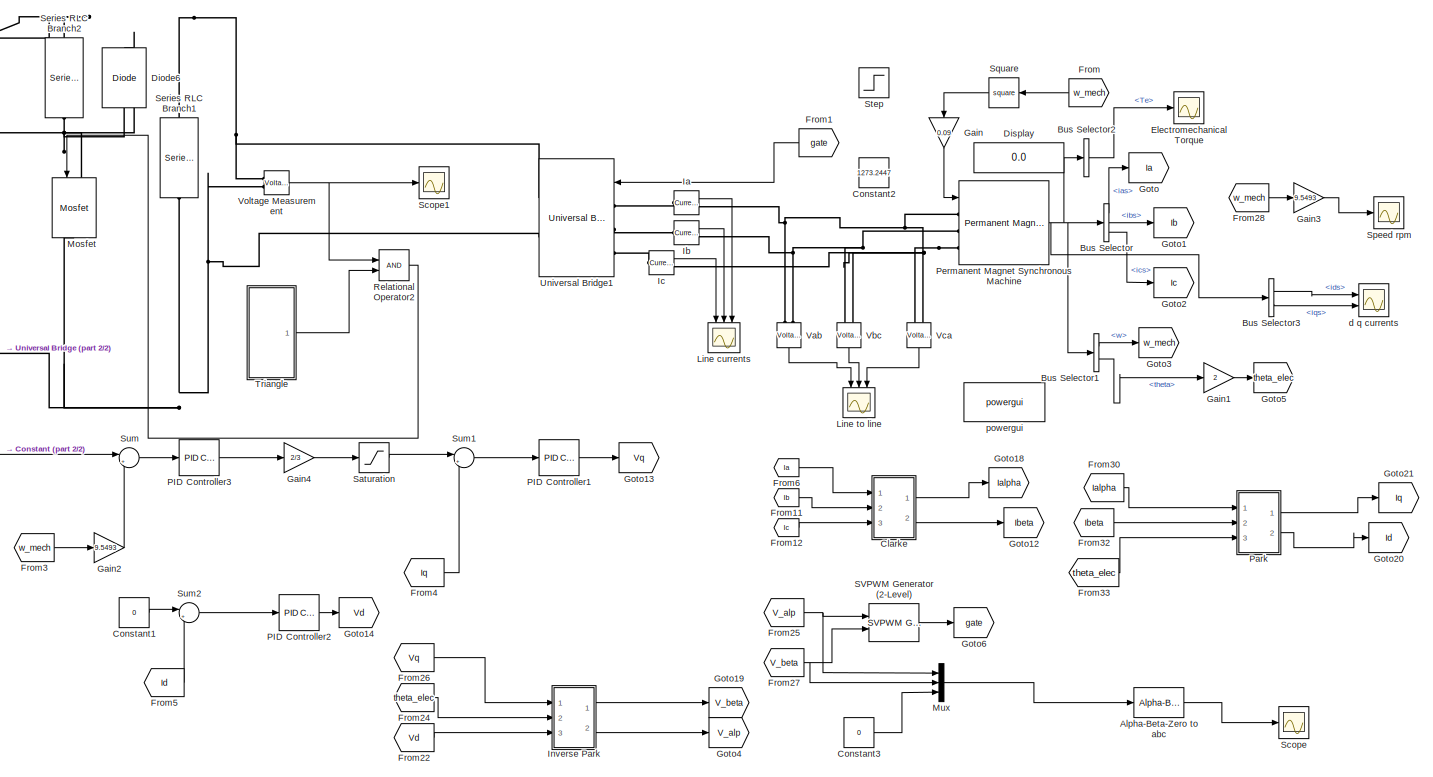
[diagram: root canvas - part 1/2, most of the canvas]
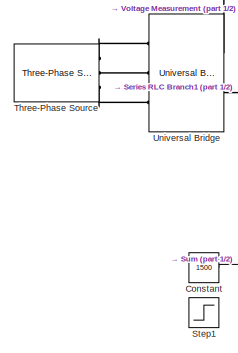
[diagram: root canvas - part 2/2, middle left region]
MODEL slx_61629ac825fa
KIND model
CONFIG AbsTol = auto
CONFIG EnableMultiTasking = off
CONFIG FixedStep = auto
CONFIG MaxStep = auto
CONFIG MinStep = auto
CONFIG RelTol = 1e-3
CONFIG SampleTimeConstraint = Unconstrained
CONFIG Solver = VariableStepDiscrete
CONFIG SolverName = VariableStepDiscrete
CONFIG StartTime = 0.0
CONFIG StopTime = 3
BLOCK [Reference] Alpha-Beta-Zero to abc  REF=powerlib_meascontrol/Transformations/Alpha-Beta-Zero
to abc
  Ports = [1, 1]
  SourceBlock = powerlib_meascontrol/Transformations/Alpha-Beta-Zero\nto abc
  SourceProductBaseCode = PS
  SourceProductName = Simscape Power Systems
  SourceType = Alpha-Beta-Zero to abc Transformation
BLOCK [BusSelector] Bus Selector
  OutputAsBus = off
  OutputSignals = ias,ibs,ics
  Ports = [1, 3]
BLOCK [BusSelector] Bus Selector1
  OutputAsBus = off
  OutputSignals = w,theta
  Ports = [1, 2]
BLOCK [BusSelector] Bus Selector2
  OutputAsBus = off
  OutputSignals = Te
  Ports = [1, 1]
BLOCK [BusSelector] Bus Selector3
  OutputAsBus = off
  OutputSignals = ids,iqs
  Ports = [1, 2]
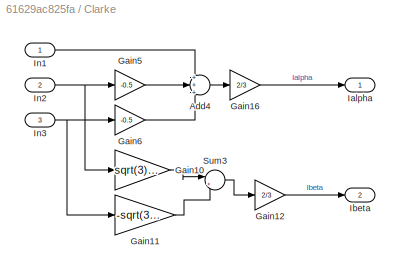
BLOCK [SubSystem] Clarke
  Ports = [3, 2]
  RequestExecContextInheritance = off
BLOCK [Sum] Clarke/Add4
  IconShape = round
  InputSameDT = off
  Inputs = +++
  OutDataTypeStr = Inherit: Inherit via internal rule
  Ports = [3, 1]
  SaturateOnIntegerOverflow = off
BLOCK [Gain] Clarke/Gain10
  Gain = sqrt(3)/2
  OutDataTypeStr = Inherit: Inherit via internal rule
  ParamDataTypeStr = Inherit: Inherit via internal rule
  SaturateOnIntegerOverflow = off
BLOCK [Gain] Clarke/Gain11
  Gain = -sqrt(3)/2
  OutDataTypeStr = Inherit: Inherit via internal rule
  ParamDataTypeStr = Inherit: Inherit via internal rule
  SaturateOnIntegerOverflow = off
BLOCK [Gain] Clarke/Gain12
  Gain = 2/3
  OutDataTypeStr = Inherit: Inherit via internal rule
  ParamDataTypeStr = Inherit: Inherit via internal rule
  SaturateOnIntegerOverflow = off
BLOCK [Gain] Clarke/Gain16
  Gain = 2/3
  OutDataTypeStr = Inherit: Inherit via internal rule
  ParamDataTypeStr = Inherit: Inherit via internal rule
  SaturateOnIntegerOverflow = off
BLOCK [Gain] Clarke/Gain5
  Gain = -0.5
  OutDataTypeStr = Inherit: Inherit via internal rule
  ParamDataTypeStr = Inherit: Inherit via internal rule
  SaturateOnIntegerOverflow = off
BLOCK [Gain] Clarke/Gain6
  Gain = -0.5
  OutDataTypeStr = Inherit: Inherit via internal rule
  ParamDataTypeStr = Inherit: Inherit via internal rule
  SaturateOnIntegerOverflow = off
BLOCK [Outport] Clarke/Ialpha
  IconDisplay = Port number
BLOCK [Outport] Clarke/Ibeta
  IconDisplay = Port number
  Port = 2
BLOCK [Inport] Clarke/In1
  IconDisplay = Port number
BLOCK [Inport] Clarke/In2
  IconDisplay = Port number
  Port = 2
BLOCK [Inport] Clarke/In3
  IconDisplay = Port number
  Port = 3
BLOCK [Sum] Clarke/Sum3
  IconShape = round
  InputSameDT = off
  Inputs = |++
  OutDataTypeStr = Inherit: Inherit via internal rule
  Ports = [2, 1]
  SaturateOnIntegerOverflow = off
BLOCK [Constant] Constant
  Value = 1500
BLOCK [Constant] Constant1
  Value = 0
BLOCK [Constant] Constant2
  Value = 1273.2447
BLOCK [Constant] Constant3
  Value = 0
BLOCK [Reference] Diode6  REF=powerlib/Power
Electronics/Diode
  Ports = [0, 0, 0, 0, 0, 1, 1]
  SourceBlock = powerlib/Power\nElectronics/Diode
  SourceProductBaseCode = PS
  SourceProductName = Simscape Power Systems
  SourceType = Diode
BLOCK [Display] Display
  Decimation = 1
  Ports = [1]
BLOCK [Scope] Electromechanical Torque
  Floating = off
  NumInputPorts = 1
  Ports = [1]
  ScopeSpecificationString = Simulink.scopes.TimeScopeBlockCfg('CurrentConfiguration', extmgr.ConfigurationSet(extmgr.Configuration('Core','General UI',true,'FigureColor',[1 1 1]),extmgr.Configuration('Core','Source UI',true),extmgr.Configuration('Sources','WiredSimulink',true,'DataLoggingVariableName','ScopeData2'),extmgr.Configuration('Visuals','Time Domain',true,'SerializedDisplays',{struct('MinYLimReal','-4802.388','MaxYL...<+1638ch>
BLOCK [From] From
  GotoTag = w_mech
BLOCK [From] From1
  GotoTag = gate
BLOCK [From] From11
  GotoTag = Ib
BLOCK [From] From12
  GotoTag = Ic
BLOCK [From] From22
  GotoTag = Vd
BLOCK [From] From24
  GotoTag = theta_elec
BLOCK [From] From25
  GotoTag = V_alp
BLOCK [From] From26
  GotoTag = Vq
BLOCK [From] From27
  GotoTag = V_beta
BLOCK [From] From28
  GotoTag = w_mech
BLOCK [From] From3
  GotoTag = w_mech
BLOCK [From] From30
  GotoTag = Ialpha
BLOCK [From] From32
  GotoTag = Ibeta
BLOCK [From] From33
  GotoTag = theta_elec
BLOCK [From] From4
  GotoTag = Iq
BLOCK [From] From5
  GotoTag = Id
BLOCK [From] From6
  GotoTag = Ia
BLOCK [Gain] Gain
  Gain = 0.09
  OutDataTypeStr = Inherit: Inherit via internal rule
  ParamDataTypeStr = Inherit: Inherit via internal rule
  SaturateOnIntegerOverflow = off
BLOCK [Gain] Gain1
  Gain = 2
  OutDataTypeStr = Inherit: Inherit via internal rule
  ParamDataTypeStr = Inherit: Inherit via internal rule
  SaturateOnIntegerOverflow = off
BLOCK [Gain] Gain2
  Gain = 9.5493
  OutDataTypeStr = Inherit: Inherit via internal rule
  ParamDataTypeStr = Inherit: Inherit via internal rule
  SaturateOnIntegerOverflow = off
BLOCK [Gain] Gain3
  Gain = 9.5493
  OutDataTypeStr = Inherit: Inherit via internal rule
  ParamDataTypeStr = Inherit: Inherit via internal rule
  SaturateOnIntegerOverflow = off
BLOCK [Gain] Gain4
  Gain = 2/3
  OutDataTypeStr = Inherit: Inherit via internal rule
  ParamDataTypeStr = Inherit: Inherit via internal rule
  SaturateOnIntegerOverflow = off
BLOCK [Goto] Goto
  GotoTag = Ia
BLOCK [Goto] Goto1
  GotoTag = Ib
BLOCK [Goto] Goto12
  GotoTag = Ibeta
BLOCK [Goto] Goto13
  GotoTag = Vq
BLOCK [Goto] Goto14
  GotoTag = Vd
BLOCK [Goto] Goto18
  GotoTag = Ialpha
BLOCK [Goto] Goto19
  GotoTag = V_beta
BLOCK [Goto] Goto2
  GotoTag = Ic
BLOCK [Goto] Goto20
  GotoTag = Id
BLOCK [Goto] Goto21
  GotoTag = Iq
BLOCK [Goto] Goto3
  GotoTag = w_mech
BLOCK [Goto] Goto4
  GotoTag = V_alp
BLOCK [Goto] Goto5
  GotoTag = theta_elec
BLOCK [Goto] Goto6
  GotoTag = gate
BLOCK [Reference] Ia  REF=powerlib/Measurements/Current Measurement
  Ports = [0, 1, 0, 0, 0, 1, 1]
  SourceBlock = powerlib/Measurements/Current Measurement
  SourceProductBaseCode = PS
  SourceProductName = Simscape Power Systems
  SourceType = Current Measurement
  UserDataPersistent = on
BLOCK [Reference] Ib  REF=powerlib/Measurements/Current Measurement
  Ports = [0, 1, 0, 0, 0, 1, 1]
  SourceBlock = powerlib/Measurements/Current Measurement
  SourceProductBaseCode = PS
  SourceProductName = Simscape Power Systems
  SourceType = Current Measurement
  UserDataPersistent = on
BLOCK [Reference] Ic  REF=powerlib/Measurements/Current Measurement
  Ports = [0, 1, 0, 0, 0, 1, 1]
  SourceBlock = powerlib/Measurements/Current Measurement
  SourceProductBaseCode = PS
  SourceProductName = Simscape Power Systems
  SourceType = Current Measurement
  UserDataPersistent = on
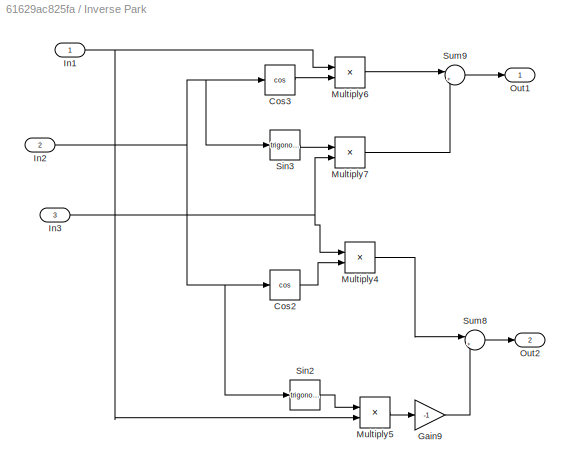
BLOCK [SubSystem] Inverse Park
  Ports = [3, 2]
  RequestExecContextInheritance = off
BLOCK [Trigonometry] Inverse Park/Cos2
  Operator = cos
  Ports = [1, 1]
BLOCK [Trigonometry] Inverse Park/Cos3
  Operator = cos
  Ports = [1, 1]
BLOCK [Gain] Inverse Park/Gain9
  Gain = -1
  OutDataTypeStr = Inherit: Inherit via internal rule
  ParamDataTypeStr = Inherit: Inherit via internal rule
  SaturateOnIntegerOverflow = off
BLOCK [Inport] Inverse Park/In1
  IconDisplay = Port number
BLOCK [Inport] Inverse Park/In2
  IconDisplay = Port number
  Port = 2
BLOCK [Inport] Inverse Park/In3
  IconDisplay = Port number
  Port = 3
BLOCK [Product] Inverse Park/Multiply4
  InputSameDT = off
  OutDataTypeStr = Inherit: Inherit via internal rule
  Ports = [2, 1]
  RndMeth = Floor
  SaturateOnIntegerOverflow = off
BLOCK [Product] Inverse Park/Multiply5
  InputSameDT = off
  OutDataTypeStr = Inherit: Inherit via internal rule
  Ports = [2, 1]
  RndMeth = Floor
  SaturateOnIntegerOverflow = off
BLOCK [Product] Inverse Park/Multiply6
  InputSameDT = off
  OutDataTypeStr = Inherit: Inherit via internal rule
  Ports = [2, 1]
  RndMeth = Floor
  SaturateOnIntegerOverflow = off
BLOCK [Product] Inverse Park/Multiply7
  InputSameDT = off
  OutDataTypeStr = Inherit: Inherit via internal rule
  Ports = [2, 1]
  RndMeth = Floor
  SaturateOnIntegerOverflow = off
BLOCK [Outport] Inverse Park/Out1
  IconDisplay = Port number
BLOCK [Outport] Inverse Park/Out2
  IconDisplay = Port number
  Port = 2
BLOCK [Trigonometry] Inverse Park/Sin2
  Ports = [1, 1]
BLOCK [Trigonometry] Inverse Park/Sin3
  Ports = [1, 1]
BLOCK [Sum] Inverse Park/Sum8
  IconShape = round
  InputSameDT = off
  Inputs = |++
  OutDataTypeStr = Inherit: Inherit via internal rule
  Ports = [2, 1]
  SaturateOnIntegerOverflow = off
BLOCK [Sum] Inverse Park/Sum9
  IconShape = round
  InputSameDT = off
  Inputs = |++
  OutDataTypeStr = Inherit: Inherit via internal rule
  Ports = [2, 1]
  SaturateOnIntegerOverflow = off
BLOCK [Scope] Line currents
  Floating = off
  NumInputPorts = 3
  Ports = [3]
  ScopeSpecificationString = Simulink.scopes.TimeScopeBlockCfg('CurrentConfiguration', extmgr.ConfigurationSet(extmgr.Configuration('Core','General UI',true,'FigureColor',[1 1 1]),extmgr.Configuration('Core','Source UI',true),extmgr.Configuration('Sources','WiredSimulink',true,'DataLoggingVariableName','line_currents','DataLogging',true),extmgr.Configuration('Visuals','Time Domain',true,'SerializedDisplays',{struct('MinYLimRe...<+3121ch>
BLOCK [Scope] Line to line
  Floating = off
  NumInputPorts = 3
  Ports = [3]
  ScopeSpecificationString = Simulink.scopes.TimeScopeBlockCfg('CurrentConfiguration', extmgr.ConfigurationSet(extmgr.Configuration('Core','General UI',true,'FigureColor',[1 1 1]),extmgr.Configuration('Core','Source UI',true),extmgr.Configuration('Sources','WiredSimulink',true,'DataLoggingVariableName','ScopeData4'),extmgr.Configuration('Visuals','Time Domain',true,'SerializedDisplays',{struct('MinYLimReal','-962.05775','MaxY...<+3115ch>
BLOCK [Reference] Mosfet  REF=powerlib/Power
Electronics/Mosfet
  Ports = [1, 0, 0, 0, 0, 1, 1]
  SourceBlock = powerlib/Power\nElectronics/Mosfet
  SourceProductBaseCode = PS
  SourceProductName = Simscape Power Systems
  SourceType = Mosfet
BLOCK [Mux] Mux
  DisplayOption = bar
  Inputs = 3
  Ports = [3, 1]
BLOCK [Reference] PID Controller1  REF=simulink/Continuous/PID Controller
  Ports = [1, 1]
  SourceBlock = simulink/Continuous/PID Controller
  SourceProductBaseCode = SL
  SourceProductName = Simulink
  SourceType = PID 1dof
BLOCK [Reference] PID Controller2  REF=simulink/Continuous/PID Controller
  Ports = [1, 1]
  SourceBlock = simulink/Continuous/PID Controller
  SourceProductBaseCode = SL
  SourceProductName = Simulink
  SourceType = PID 1dof
BLOCK [Reference] PID Controller3  REF=simulink/Continuous/PID Controller
  Ports = [1, 1]
  SourceBlock = simulink/Continuous/PID Controller
  SourceProductBaseCode = SL
  SourceProductName = Simulink
  SourceType = PID 1dof
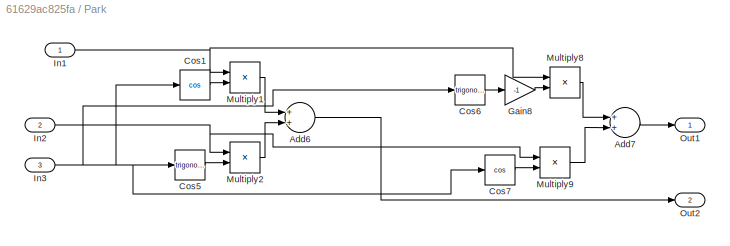
BLOCK [SubSystem] Park
  Ports = [3, 2]
  RequestExecContextInheritance = off
BLOCK [Sum] Park/Add6
  InputSameDT = off
  OutDataTypeStr = Inherit: Inherit via internal rule
  Ports = [2, 1]
  SaturateOnIntegerOverflow = off
BLOCK [Sum] Park/Add7
  InputSameDT = off
  OutDataTypeStr = Inherit: Inherit via internal rule
  Ports = [2, 1]
  SaturateOnIntegerOverflow = off
BLOCK [Trigonometry] Park/Cos1
  Operator = cos
  Ports = [1, 1]
BLOCK [Trigonometry] Park/Cos5
  Ports = [1, 1]
BLOCK [Trigonometry] Park/Cos6
  Ports = [1, 1]
BLOCK [Trigonometry] Park/Cos7
  Operator = cos
  Ports = [1, 1]
BLOCK [Gain] Park/Gain8
  Gain = -1
  OutDataTypeStr = Inherit: Inherit via internal rule
  ParamDataTypeStr = Inherit: Inherit via internal rule
  SaturateOnIntegerOverflow = off
BLOCK [Inport] Park/In1
  IconDisplay = Port number
BLOCK [Inport] Park/In2
  IconDisplay = Port number
  Port = 2
BLOCK [Inport] Park/In3
  IconDisplay = Port number
  Port = 3
BLOCK [Product] Park/Multiply1
  InputSameDT = off
  OutDataTypeStr = Inherit: Inherit via internal rule
  Ports = [2, 1]
  RndMeth = Floor
  SaturateOnIntegerOverflow = off
BLOCK [Product] Park/Multiply2
  InputSameDT = off
  OutDataTypeStr = Inherit: Inherit via internal rule
  Ports = [2, 1]
  RndMeth = Floor
  SaturateOnIntegerOverflow = off
BLOCK [Product] Park/Multiply8
  InputSameDT = off
  OutDataTypeStr = Inherit: Inherit via internal rule
  Ports = [2, 1]
  RndMeth = Floor
  SaturateOnIntegerOverflow = off
BLOCK [Product] Park/Multiply9
  InputSameDT = off
  OutDataTypeStr = Inherit: Inherit via internal rule
  Ports = [2, 1]
  RndMeth = Floor
  SaturateOnIntegerOverflow = off
BLOCK [Outport] Park/Out1
  IconDisplay = Port number
BLOCK [Outport] Park/Out2
  IconDisplay = Port number
  Port = 2
BLOCK [Reference] Permanent Magnet Synchronous Machine  REF=powerlib/Machines/Permanent Magnet
Synchronous Machine
  Ports = [1, 1, 0, 0, 0, 3]
  SourceBlock = powerlib/Machines/Permanent Magnet\nSynchronous Machine
  SourceProductBaseCode = PS
  SourceProductName = Simscape Power Systems
  SourceType = Permanent Magnet Synchronous Machine
BLOCK [RelationalOperator] Relational Operator2
  InputSameDT = off
  OutDataTypeStr = boolean
  Ports = [2, 1]
  RndMeth = Simplest
BLOCK [Reference] SVPWM Generator (2-Level)  REF=powerlib_meascontrol/Pulse & Signal
Generators/SVPWM Generator
(2-Level)
  Ports = [2, 1]
  SourceBlock = powerlib_meascontrol/Pulse & Signal\nGenerators/SVPWM Generator\n(2-Level)
  SourceProductBaseCode = PS
  SourceProductName = Simscape Power Systems
  SourceType = SVPWM Generator (2-Level)
BLOCK [Saturate] Saturation
  InputPortMap = u0
  LowerLimit = -1700
  Ports = [1, 1]
  UpperLimit = 1700
BLOCK [Scope] Scope
  Floating = off
  NumInputPorts = 1
  Ports = [1]
  ScopeSpecificationString = Simulink.scopes.TimeScopeBlockCfg('CurrentConfiguration', extmgr.ConfigurationSet(extmgr.Configuration('Core','General UI',true),extmgr.Configuration('Core','Source UI',true),extmgr.Configuration('Sources','WiredSimulink',true,'DataLoggingVariableName','ScopeData6'),extmgr.Configuration('Visuals','Time Domain',true,'SerializedDisplays',{struct('MinYLimReal','-7.18725','MaxYLimReal','7.00921','YLab...<+1481ch>
BLOCK [Scope] Scope1
  Floating = off
  NumInputPorts = 1
  Ports = [1]
  ScopeSpecificationString = Simulink.scopes.TimeScopeBlockCfg('CurrentConfiguration', extmgr.ConfigurationSet(extmgr.Configuration('Core','General UI',true,'FigureColor',[1 1 1]),extmgr.Configuration('Core','Source UI',true),extmgr.Configuration('Sources','WiredSimulink',true,'DataLoggingVariableName','ScopeData3'),extmgr.Configuration('Visuals','Time Domain',true,'SerializedDisplays',{struct('MinYLimReal','434.5121','MaxYLi...<+1651ch>
BLOCK [Reference] Series RLC Branch1  REF=powerlib/Elements/Series RLC Branch
  Ports = [0, 0, 0, 0, 0, 1, 1]
  SourceBlock = powerlib/Elements/Series RLC Branch
  SourceProductBaseCode = PS
  SourceProductName = Simscape Power Systems
  SourceType = Series RLC Branch
BLOCK [Reference] Series RLC Branch2  REF=powerlib/Elements/Series RLC Branch
  Ports = [0, 0, 0, 0, 0, 1, 1]
  SourceBlock = powerlib/Elements/Series RLC Branch
  SourceProductBaseCode = PS
  SourceProductName = Simscape Power Systems
  SourceType = Series RLC Branch
BLOCK [Scope] Speed rpm
  Floating = off
  NumInputPorts = 1
  Ports = [1]
  ScopeSpecificationString = Simulink.scopes.TimeScopeBlockCfg('CurrentConfiguration', extmgr.ConfigurationSet(extmgr.Configuration('Core','General UI',true,'FigureColor',[1 1 1]),extmgr.Configuration('Core','Source UI',true),extmgr.Configuration('Sources','WiredSimulink',true,'DataLoggingVariableName','ScopeData1'),extmgr.Configuration('Visuals','Time Domain',true,'SerializedDisplays',{struct('MinYLimReal','1497.51635','MaxY...<+1649ch>
BLOCK [Math] Square
  Operator = square
  Ports = [1, 1]
BLOCK [Step] Step
  After = 0
  Before = 2214
  SampleTime = 0
  Time = 0.5
BLOCK [Step] Step1
  After = -1500
  Before = 1500
  SampleTime = 0
  Time = 0.5
BLOCK [Sum] Sum
  IconShape = round
  InputSameDT = off
  Inputs = |+-
  OutDataTypeStr = Inherit: Inherit via internal rule
  Ports = [2, 1]
  SaturateOnIntegerOverflow = off
BLOCK [Sum] Sum1
  IconShape = round
  InputSameDT = off
  Inputs = |+-
  OutDataTypeStr = Inherit: Inherit via internal rule
  Ports = [2, 1]
  SaturateOnIntegerOverflow = off
BLOCK [Sum] Sum2
  IconShape = round
  InputSameDT = off
  Inputs = |+-
  OutDataTypeStr = Inherit: Inherit via internal rule
  Ports = [2, 1]
  SaturateOnIntegerOverflow = off
BLOCK [Reference] Three-Phase Source  REF=powerlib/Electrical
Sources/Three-Phase Source
  Ports = [0, 0, 0, 0, 0, 0, 3]
  SourceBlock = powerlib/Electrical\nSources/Three-Phase Source
  SourceProductBaseCode = PS
  SourceProductName = Simscape Power Systems
  SourceType = Three-Phase Source
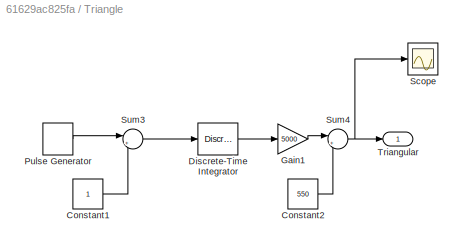
BLOCK [SubSystem] Triangle
  Ports = [0, 1]
  RequestExecContextInheritance = off
BLOCK [Constant] Triangle/Constant1
BLOCK [Constant] Triangle/Constant2
  Value = 550
BLOCK [DiscreteIntegrator] Triangle/Discrete-Time Integrator
  ICPrevOutput = DiscIntNeverNeededParam
  ICPrevScaledInput = DiscIntNeverNeededParam
  InitialConditionSetting = Auto
  Ports = [1, 1]
  SampleTime = -1
BLOCK [Gain] Triangle/Gain1
  Gain = 5000
  OutDataTypeStr = Inherit: Inherit via internal rule
  ParamDataTypeStr = Inherit: Inherit via internal rule
  SaturateOnIntegerOverflow = off
BLOCK [DiscretePulseGenerator] Triangle/Pulse Generator
  Amplitude = 2
  Period = 1/5000
  Ports = [0, 1]
  PulseType = Time based
  PulseWidth = 50
BLOCK [Scope] Triangle/Scope
  Floating = off
  NumInputPorts = 1
  Ports = [1]
  ScopeSpecificationString = Simulink.scopes.TimeScopeBlockCfg('CurrentConfiguration', extmgr.ConfigurationSet(extmgr.Configuration('Core','General UI',true),extmgr.Configuration('Core','Source UI',true),extmgr.Configuration('Sources','WiredSimulink',true,'DataLoggingVariableName','ScopeData4'),extmgr.Configuration('Visuals','Time Domain',true,'SerializedDisplays',{struct('MinYLimReal','549.9375','MaxYLimReal','550.5625','YLa...<+1441ch>
BLOCK [Sum] Triangle/Sum3
  IconShape = round
  InputSameDT = off
  Inputs = |+-
  OutDataTypeStr = Inherit: Inherit via internal rule
  Ports = [2, 1]
  SaturateOnIntegerOverflow = off
BLOCK [Sum] Triangle/Sum4
  IconShape = round
  InputSameDT = off
  Inputs = |++
  OutDataTypeStr = Inherit: Inherit via internal rule
  Ports = [2, 1]
  SaturateOnIntegerOverflow = off
BLOCK [Outport] Triangle/Triangular
  IconDisplay = Port number
BLOCK [Reference] Universal Bridge  REF=powerlib/Power
Electronics/Universal Bridge
  Ports = [0, 0, 0, 0, 0, 3, 2]
  SourceBlock = powerlib/Power\nElectronics/Universal Bridge
  SourceProductBaseCode = PS
  SourceProductName = Simscape Power Systems
  SourceType = Universal Bridge
BLOCK [Reference] Universal Bridge1  REF=powerlib/Power
Electronics/Universal Bridge
  Ports = [1, 0, 0, 0, 0, 3, 2]
  SourceBlock = powerlib/Power\nElectronics/Universal Bridge
  SourceProductBaseCode = PS
  SourceProductName = Simscape Power Systems
  SourceType = Universal Bridge
BLOCK [Reference] Vab  REF=powerlib/Measurements/Voltage Measurement
  Ports = [0, 1, 0, 0, 0, 2]
  SourceBlock = powerlib/Measurements/Voltage Measurement
  SourceProductBaseCode = PS
  SourceProductName = Simscape Power Systems
  SourceType = Voltage Measurement
  UserDataPersistent = on
BLOCK [Reference] Vbc  REF=powerlib/Measurements/Voltage Measurement
  Ports = [0, 1, 0, 0, 0, 2]
  SourceBlock = powerlib/Measurements/Voltage Measurement
  SourceProductBaseCode = PS
  SourceProductName = Simscape Power Systems
  SourceType = Voltage Measurement
  UserDataPersistent = on
BLOCK [Reference] Vca  REF=powerlib/Measurements/Voltage Measurement
  Ports = [0, 1, 0, 0, 0, 2]
  SourceBlock = powerlib/Measurements/Voltage Measurement
  SourceProductBaseCode = PS
  SourceProductName = Simscape Power Systems
  SourceType = Voltage Measurement
  UserDataPersistent = on
BLOCK [Reference] Voltage Measurement  REF=powerlib/Measurements/Voltage Measurement
  Ports = [0, 1, 0, 0, 0, 2]
  SourceBlock = powerlib/Measurements/Voltage Measurement
  SourceProductBaseCode = PS
  SourceProductName = Simscape Power Systems
  SourceType = Voltage Measurement
  UserDataPersistent = on
BLOCK [Scope] d q currents
  Floating = off
  NumInputPorts = 2
  Ports = [2]
  ScopeSpecificationString = Simulink.scopes.TimeScopeBlockCfg('CurrentConfiguration', extmgr.ConfigurationSet(extmgr.Configuration('Core','General UI',true,'FigureColor',[1 1 1]),extmgr.Configuration('Core','Source UI',true),extmgr.Configuration('Sources','WiredSimulink',true,'DataLoggingVariableName','ScopeData5'),extmgr.Configuration('Visuals','Time Domain',true,'SerializedDisplays',{struct('MinYLimReal','-1710.71321','Max...<+2377ch>
BLOCK [Reference] powergui  REF=powerlib/powergui
  Ports = []
  Priority = 1
  SourceBlock = powerlib/powergui
  SourceProductBaseCode = PS
  SourceProductName = Simscape Power Systems
  SourceType = PSB option menu block
LINE Alpha-Beta-Zero to abc:1 -> Scope:1
LINE Bus Selector1:1 -> Goto3:1
LINE Bus Selector1:2 -> Gain1:1
LINE Bus Selector2:1 -> Electromechanical Torque:1
LINE Bus Selector3:1 -> d q currents:1
LINE Bus Selector3:2 -> d q currents:2
LINE Bus Selector:1 -> Goto:1
LINE Bus Selector:2 -> Goto1:1
LINE Bus Selector:3 -> Goto2:1
LINE Clarke/Add4:1 -> Clarke/Gain16:1
LINE Clarke/Gain10:1 -> Clarke/Sum3:1
LINE Clarke/Gain11:1 -> Clarke/Sum3:2
LINE Clarke/Gain12:1 -> Clarke/Ibeta:1
LINE Clarke/Gain16:1 -> Clarke/Ialpha:1
LINE Clarke/Gain5:1 -> Clarke/Add4:2
LINE Clarke/Gain6:1 -> Clarke/Add4:3
LINE Clarke/In1:1 -> Clarke/Add4:1
NET Clarke/In2:1 -> Clarke/Gain10:1, Clarke/Gain5:1
NET Clarke/In3:1 -> Clarke/Gain11:1, Clarke/Gain6:1
LINE Clarke/Sum3:1 -> Clarke/Gain12:1
LINE Clarke:1 -> Goto18:1
LINE Clarke:2 -> Goto12:1
LINE Constant1:1 -> Sum2:1
LINE Constant3:1 -> Mux:3
LINE Constant:1 -> Sum:1
LINE From11:1 -> Clarke:2
LINE From12:1 -> Clarke:3
LINE From1:1 -> Universal Bridge1:1
LINE From22:1 -> Inverse Park:3
LINE From24:1 -> Inverse Park:2
NET From25:1 -> Mux:1, SVPWM Generator (2-Level):1
LINE From26:1 -> Inverse Park:1
NET From27:1 -> Mux:2, SVPWM Generator (2-Level):2
LINE From28:1 -> Gain3:1
LINE From30:1 -> Park:1
LINE From32:1 -> Park:2
LINE From33:1 -> Park:3
LINE From3:1 -> Gain2:1
LINE From4:1 -> Sum1:2
LINE From5:1 -> Sum2:2
LINE From6:1 -> Clarke:1
LINE From:1 -> Square:1
LINE Gain1:1 -> Goto5:1
LINE Gain2:1 -> Sum:2
LINE Gain3:1 -> Speed rpm:1
LINE Gain4:1 -> Saturation:1
LINE Gain:1 -> Permanent Magnet Synchronous Machine:1
LINE Ia:1 -> Line currents:3
LINE Ib:1 -> Line currents:2
LINE Ic:1 -> Line currents:1
LINE Inverse Park/Cos2:1 -> Inverse Park/Multiply4:2
LINE Inverse Park/Cos3:1 -> Inverse Park/Multiply6:2
LINE Inverse Park/Gain9:1 -> Inverse Park/Sum8:2
NET Inverse Park/In1:1 -> Inverse Park/Multiply5:2, Inverse Park/Multiply6:1
NET Inverse Park/In2:1 -> Inverse Park/Cos2:1, Inverse Park/Cos3:1, Inverse Park/Sin2:1, Inverse Park/Sin3:1
NET Inverse Park/In3:1 -> Inverse Park/Multiply4:1, Inverse Park/Multiply7:2
LINE Inverse Park/Multiply4:1 -> Inverse Park/Sum8:1
LINE Inverse Park/Multiply5:1 -> Inverse Park/Gain9:1
LINE Inverse Park/Multiply6:1 -> Inverse Park/Sum9:1
LINE Inverse Park/Multiply7:1 -> Inverse Park/Sum9:2
LINE Inverse Park/Sin2:1 -> Inverse Park/Multiply5:1
LINE Inverse Park/Sin3:1 -> Inverse Park/Multiply7:1
LINE Inverse Park/Sum8:1 -> Inverse Park/Out2:1
LINE Inverse Park/Sum9:1 -> Inverse Park/Out1:1
LINE Inverse Park:1 -> Goto19:1
LINE Inverse Park:2 -> Goto4:1
LINE Mux:1 -> Alpha-Beta-Zero to abc:1
LINE PID Controller1:1 -> Goto13:1
LINE PID Controller2:1 -> Goto14:1
LINE PID Controller3:1 -> Gain4:1
LINE Park/Add6:1 -> Park/Out2:1
LINE Park/Add7:1 -> Park/Out1:1
LINE Park/Cos1:1 -> Park/Multiply1:2
LINE Park/Cos5:1 -> Park/Multiply2:2
LINE Park/Cos6:1 -> Park/Gain8:1
LINE Park/Cos7:1 -> Park/Multiply9:2
LINE Park/Gain8:1 -> Park/Multiply8:2
NET Park/In1:1 -> Park/Multiply1:1, Park/Multiply8:1
NET Park/In2:1 -> Park/Multiply2:1, Park/Multiply9:1
NET Park/In3:1 -> Park/Cos1:1, Park/Cos5:1, Park/Cos6:1, Park/Cos7:1
LINE Park/Multiply1:1 -> Park/Add6:1
LINE Park/Multiply2:1 -> Park/Add6:2
LINE Park/Multiply8:1 -> Park/Add7:1
LINE Park/Multiply9:1 -> Park/Add7:2
LINE Park:1 -> Goto21:1
LINE Park:2 -> Goto20:1
NET Permanent Magnet Synchronous Machine:1 -> Bus Selector1:1, Bus Selector2:1, Bus Selector3:1, Bus Selector:1
LINE Relational Operator2:1 -> Mosfet:1
LINE SVPWM Generator (2-Level):1 -> Goto6:1
LINE Saturation:1 -> Sum1:1
LINE Square:1 -> Gain:1
LINE Sum1:1 -> PID Controller1:1
LINE Sum2:1 -> PID Controller2:1
LINE Sum:1 -> PID Controller3:1
LINE Triangle/Constant1:1 -> Triangle/Sum3:2
LINE Triangle/Constant2:1 -> Triangle/Sum4:2
LINE Triangle/Discrete-Time Integrator:1 -> Triangle/Gain1:1
LINE Triangle/Gain1:1 -> Triangle/Sum4:1
LINE Triangle/Pulse Generator:1 -> Triangle/Sum3:1
LINE Triangle/Sum3:1 -> Triangle/Discrete-Time Integrator:1
NET Triangle/Sum4:1 -> Triangle/Scope:1, Triangle/Triangular:1
LINE Triangle:1 -> Relational Operator2:2
LINE Vab:1 -> Line to line:1
LINE Vbc:1 -> Line to line:2
LINE Vca:1 -> Line to line:3
NET Voltage Measurement:1 -> Relational Operator2:1, Scope1:1
PNET net1: Diode6:LConn1 -- Mosfet:LConn1 -- Series RLC Branch2:RConn1
PNET net2: Diode6:RConn1 -- Series RLC Branch1:LConn1 -- Series RLC Branch2:LConn1 -- Universal Bridge1:RConn1 -- Universal Bridge:RConn1 -- Voltage Measurement:LConn1
PLINE Ia:LConn1 -- Universal Bridge1:LConn1
PNET net3: Ia:RConn1 -- Permanent Magnet Synchronous Machine:LConn1 -- Vab:LConn1 -- Vca:LConn2
PLINE Ib:LConn1 -- Universal Bridge1:LConn2
PNET net4: Ib:RConn1 -- Permanent Magnet Synchronous Machine:LConn2 -- Vab:LConn2 -- Vbc:LConn1
PLINE Ic:LConn1 -- Universal Bridge1:LConn3
PNET net5: Ic:RConn1 -- Permanent Magnet Synchronous Machine:LConn3 -- Vbc:LConn2 -- Vca:LConn1
PNET net6: Mosfet:RConn1 -- Series RLC Branch1:RConn1 -- Universal Bridge1:RConn2 -- Universal Bridge:RConn2 -- Voltage Measurement:LConn2
PLINE Three-Phase Source:RConn1 -- Universal Bridge:LConn1
PLINE Three-Phase Source:RConn2 -- Universal Bridge:LConn2
PLINE Three-Phase Source:RConn3 -- Universal Bridge:LConn3
note: NET lines group one-source signal fan-out (src -> all destinations, sorted); 1:1 wires keep LINE; PNET lines group multi-terminal physical nets as a canonical sorted terminal list (undirected conserving connections); 2-terminal nets keep the pairwise PLINE form
